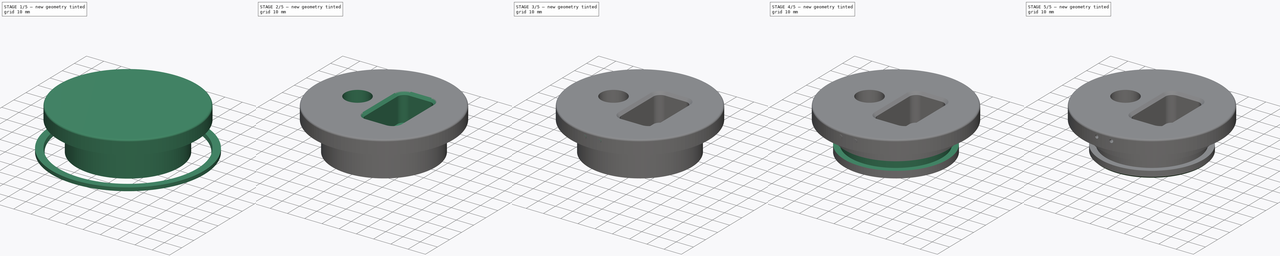
[diagram: build sequence overview — one tinted view per stage of 5, left to right]
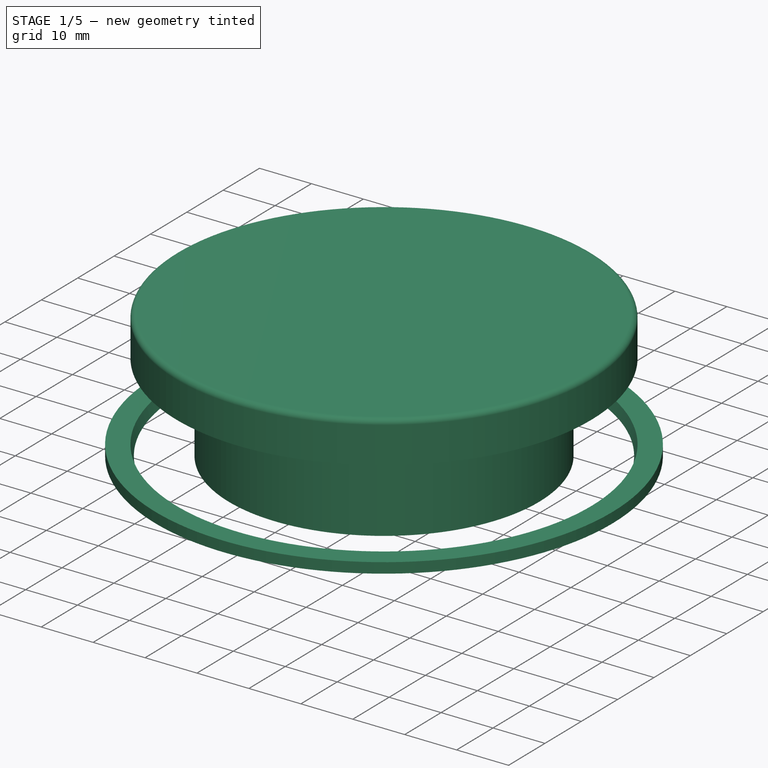
[diagram: stage 1 of 5 — iso view after this stage's code; geometry added in this stage tinted green]
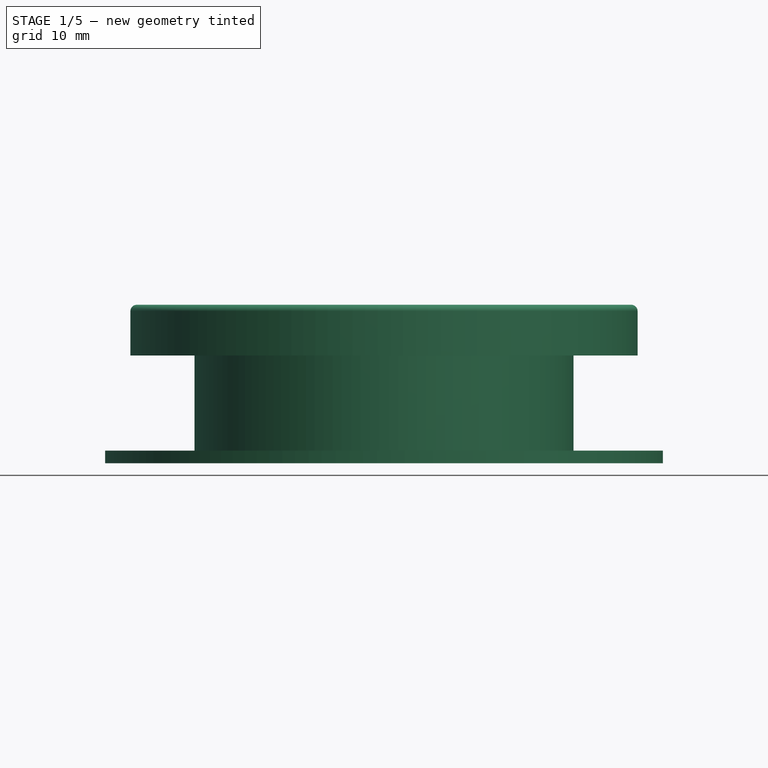
[diagram: stage 1 of 5 — front view after this stage's code; geometry added in this stage tinted green]
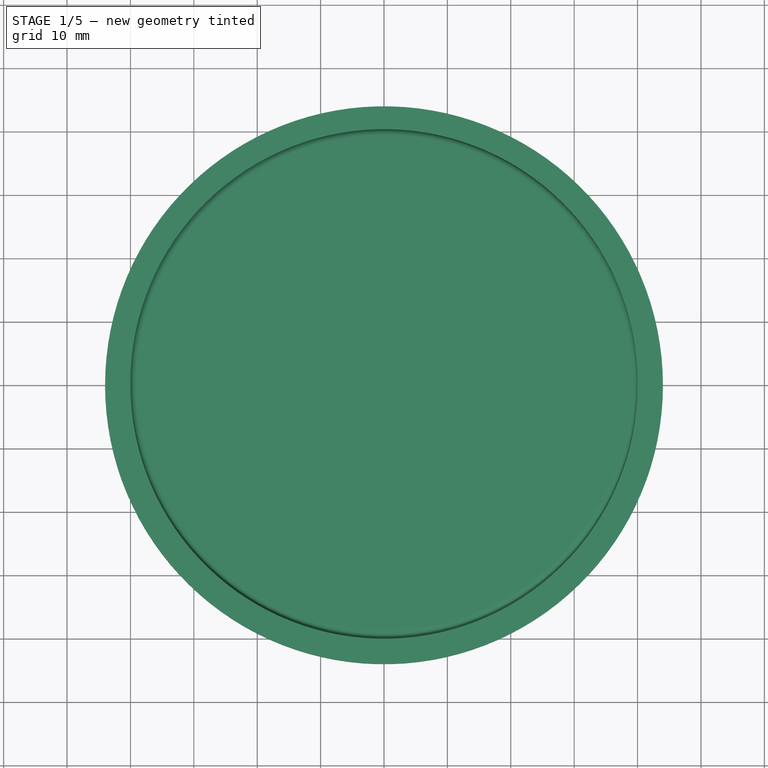
[diagram: stage 1 of 5 — top view after this stage's code; geometry added in this stage tinted green]
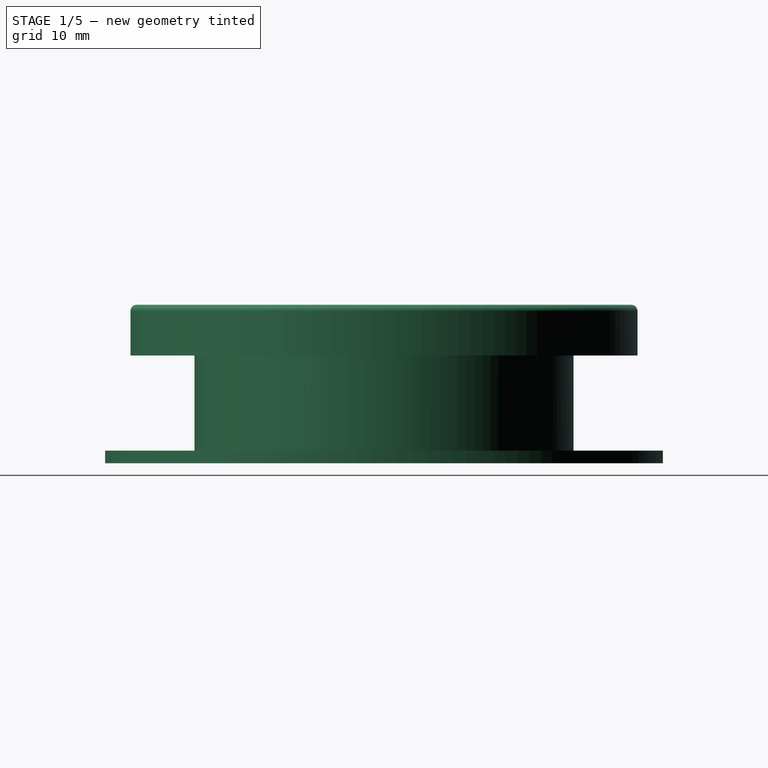
[diagram: stage 1 of 5 — right view after this stage's code; geometry added in this stage tinted green]
FCSTD DOCUMENT  (FreeCAD 0.15R4671 (Git))
Label: Deckel-POM-60er-tank
License: CC-BY 3.0
LicenseURL: http://creativecommons.org/licenses/by/3.0/
objects: Sketcher::SketchObject×7, PartDesign::Pocket×4, PartDesign::Pad×3, Part::MultiFuse×3, Part::Cut×3, Part::Cylinder×2, Part::Mirroring×2, PartDesign::Fillet×1, PartDesign::Chamfer×1, PartDesign::Draft×1, PartDesign::Mirrored×1, Part::Chamfer×1
note: 36 computed .brp shape members not serialized (recipe doc carries the construction recipe); baked Part::Feature solids carry a one-line shape summary decoded from their .brp

FEATURE [Sketcher::SketchObject] Sketch
  sketch-geometry (1):
    g0: Circle CenterX=0 CenterY=0 CenterZ=0 NormalX=0 NormalY=0 NormalZ=1 Radius=40
  constraints (2):
    c: Coincident(g0,g-1)
    c: Radius(g0) = 40
FEATURE [PartDesign::Pad] Pad  label="Oberseite"
  Length = 8
  Length2 = 100
  Sketch = -> Sketch
  Type = 0
FEATURE [PartDesign::Fillet] Fillet
  Base = -> Pad [Edge3]
  Radius = 1
FEATURE [Sketcher::SketchObject] Sketch001
  Placement = pos=(0,0,0) rot=(1,0,0;3.14159rad)
  Support = -> Fillet [Face3]
  sketch-geometry (1):
    g0: Circle CenterX=0 CenterY=0 CenterZ=0 NormalX=0 NormalY=0 NormalZ=1 Radius=29.9
  constraints (2):
    c: Coincident(g0,g-1)
    c: Radius(g0) = 29.9
FEATURE [PartDesign::Pad] Pad001  label="Innen"
  Length = 17
  Length2 = 100
  Sketch = -> Sketch001
  Type = 0
FEATURE [PartDesign::Draft] Draft
  Angle = 15
  Placement = pos=(0,0,-17) rot=(0,0,1;0rad)
  Reversed = true
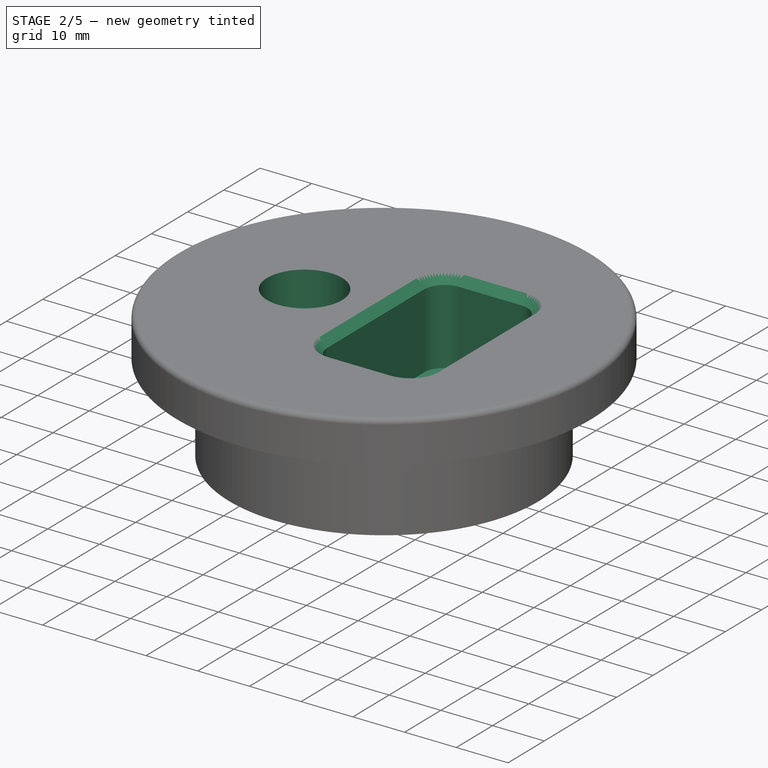
[diagram: stage 2 of 5 — iso view after this stage's code; geometry added in this stage tinted green]
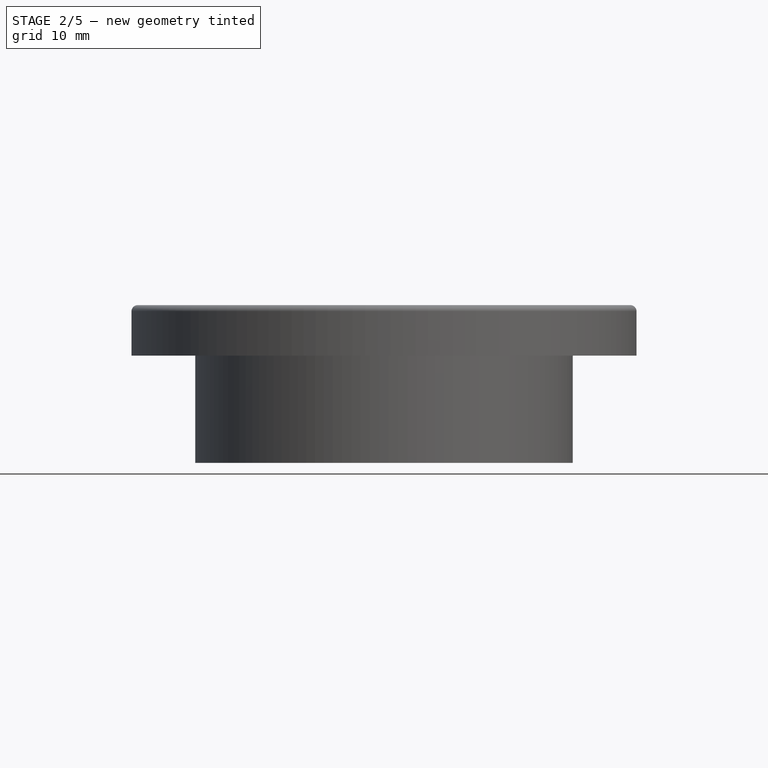
[diagram: stage 2 of 5 — front view after this stage's code; geometry added in this stage tinted green]
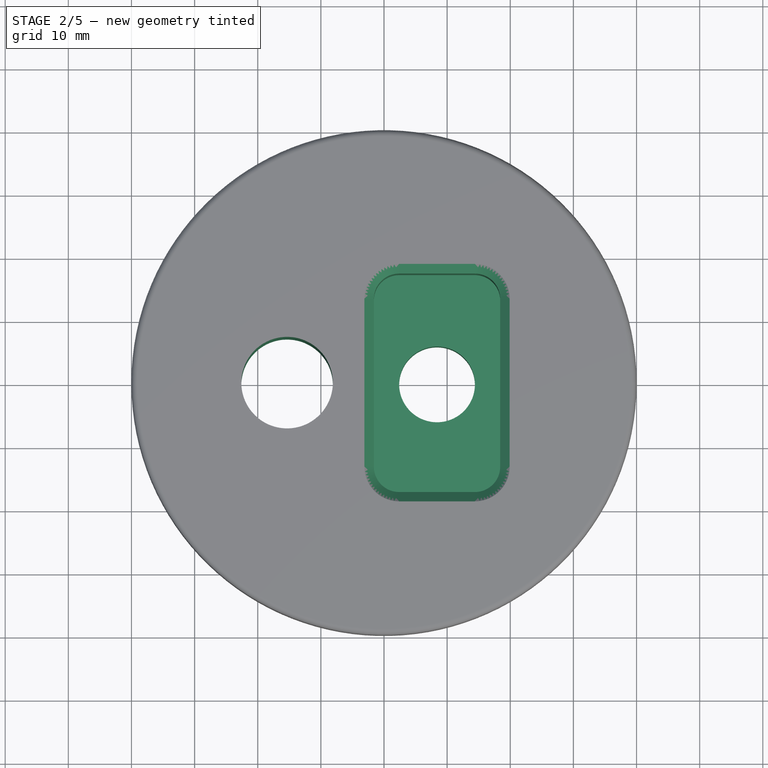
[diagram: stage 2 of 5 — top view after this stage's code; geometry added in this stage tinted green]
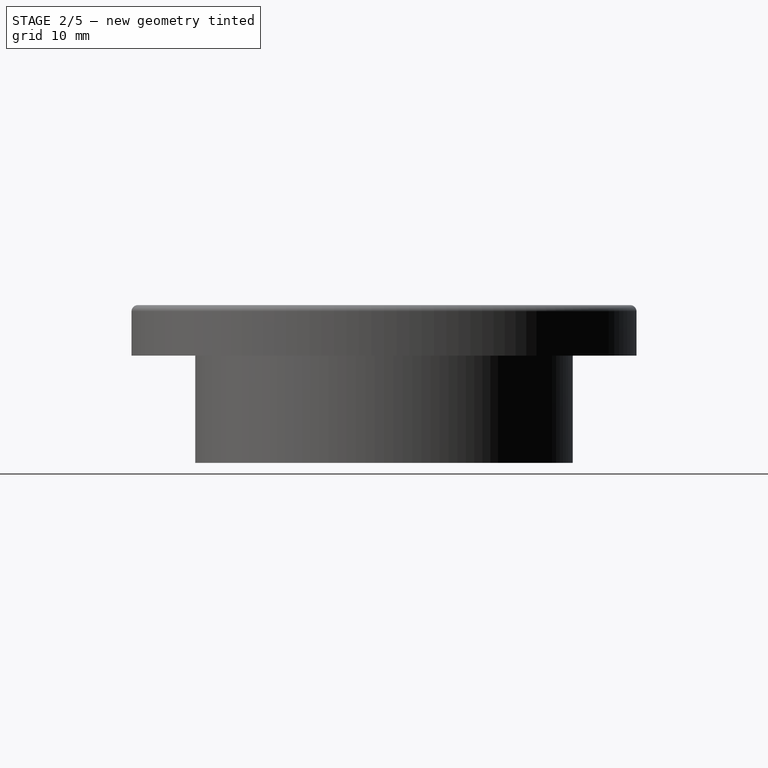
[diagram: stage 2 of 5 — right view after this stage's code; geometry added in this stage tinted green]
FEATURE [Sketcher::SketchObject] Sketch002
  Placement = pos=(0,0,8) rot=(0,0,1;0rad)
  Support = -> Pad001 [Face6]
  sketch-geometry (20):
    g0: LineSegment StartX=2.4 StartY=17.3032 StartZ=0 EndX=14.4 EndY=17.3032 EndZ=0
    g1: LineSegment StartX=18.4 StartY=13.3032 StartZ=0 EndX=18.4 EndY=-13.3032 EndZ=0
    g2: LineSegment StartX=14.4 StartY=-17.3032 StartZ=0 EndX=2.4 EndY=-17.3032 EndZ=0
    g3: LineSegment StartX=-1.6 StartY=-13.3032 StartZ=0 EndX=-1.6 EndY=13.3032 EndZ=0
    g4: Circle [constr] CenterX=0 CenterY=0 CenterZ=0 NormalX=0 NormalY=0 NormalZ=1 Radius=27.6
    g5: Circle [constr] CenterX=-16.6 CenterY=0 CenterZ=0 NormalX=0 NormalY=0 NormalZ=1 Radius=13.5
    g6: GeomPoint [constr] X=-30.1 Y=0 Z=0
    g7: GeomPoint [constr] X=-27.6 Y=0 Z=0
    g8: GeomPoint [constr] X=-3.1 Y=0 Z=0
    g9: GeomPoint [constr] X=-1.6 Y=0 Z=0
    g10: ArcOfCircle CenterX=2.4 CenterY=13.3032 CenterZ=0 NormalX=0 NormalY=0 NormalZ=1 Radius=4 StartAngle=1.5708 EndAngle=3.14159
    g11: ArcOfCircle CenterX=14.4 CenterY=13.3032 CenterZ=0 NormalX=0 NormalY=0 NormalZ=1 Radius=4 StartAngle=0 EndAngle=1.5708
    g12: ArcOfCircle CenterX=14.4 CenterY=-13.3032 CenterZ=0 NormalX=0 NormalY=0 NormalZ=1 Radius=4 StartAngle=4.71239 EndAngle=6.28319
    g13: ArcOfCircle CenterX=2.4 CenterY=-13.3032 CenterZ=0 NormalX=0 NormalY=0 NormalZ=1 Radius=4 StartAngle=3.14159 EndAngle=4.71239
    g14: LineSegment [constr] StartX=14.4 StartY=13.3032 StartZ=0 EndX=18.4 EndY=13.3032 EndZ=0
    g15: LineSegment [constr] StartX=14.4 StartY=13.3032 StartZ=0 EndX=35.6132 EndY=34.5164 EndZ=0
    g16: GeomPoint [constr] X=20.0569 Y=18.96 Z=0
    g17: Circle [constr] CenterX=-16.6 CenterY=0 CenterZ=0 NormalX=0 NormalY=0 NormalZ=1 Radius=8
    g18: GeomPoint [constr] X=17.2284 Y=16.1316 Z=0
    g19: GeomPoint [constr] X=-24.6 Y=0 Z=0
  constraints (47):
    c: Horizontal(g0)
    c: Horizontal(g2)
    c: Vertical(g1)
    c: Vertical(g3)
    c: Radius(g4) = 27.6
    c: Coincident(g4,g-1)
    c: Radius(g5) = 13.5
    c: PointOnObject(g5,g-1)
    c: PointOnObject(g6,g5)
    c: PointOnObject(g7,g4)
    c: PointOnObject(g7,g-1)
    c: PointOnObject(g6,g-1)
    c: PointOnObject(g8,g5)
    c: PointOnObject(g8,g-1)
    c: PointOnObject(g9,g-1)
    c: Distance(g8,g9) = 1.5
    c: PointOnObject(g9,g3)
    c: Tangent(g0,g10)
    c: Tangent(g3,g10)
    c: Radius(g10) = 4
    c: Tangent(g0,g11)
    c: Tangent(g1,g11)
    c: Tangent(g1,g12)
    c: Tangent(g2,g12)
    c: Tangent(g2,g13)
    c: Tangent(g3,g13)
    c: Radius(g11) = 4
    c: Radius(g12) = 4
    c: Radius(g13) = 4
    c: Horizontal(g14)
    c: Coincident(g14,g11)
    c: Coincident(g14,g1)
    c: Coincident(g15,g11)
    c: Angle(g14,g15) = 0.785398
    c: PointOnObject(g16,g4)
    c: PointOnObject(g16,g15)
    c: Coincident(g17,g5)
    c: Radius(g17) = 8
    c: PointOnObject(g18,g11)
    c: PointOnObject(g18,g15)
    c: Distance(g18,g16) = 4
    c: Symmetric(g0,g2,g-1)
    c: PointOnObject(g19,g17)
    c: PointOnObject(g19,g-1)
    c: Distance(g19,g7) = 3
    c: Distance(g15) = 30
    c: DistanceX(g2) = -12
FEATURE [PartDesign::Pocket] Pocket  label="Vertiefung Schalter"
  Length = 16
  Sketch = -> Sketch002
  Type = 0
FEATURE [PartDesign::Chamfer] Chamfer
  Base = -> Pocket [Edge9,Edge10,Edge11,Edge12,Edge13,Edge14,Edge15,Edge16]
  Size = 1.5
FEATURE [Sketcher::SketchObject] Sketch003
  ExternalGeometry = -> [Chamfer]
  Placement = pos=(0,0,-8) rot=(0,0,1;0rad)
  Support = -> Chamfer [Face20]
  sketch-geometry (3):
    g0: Circle CenterX=8.4 CenterY=0 CenterZ=0 NormalX=0 NormalY=0 NormalZ=1 Radius=6
    g1: GeomPoint [constr] X=18.4 Y=0 Z=0
    g2: GeomPoint [constr] X=-1.6 Y=0 Z=0
  constraints (7):
    c: PointOnObject(g0,g-1)
    c: PointOnObject(g1,g-3)
    c: PointOnObject(g2,g-4)
    c: PointOnObject(g2,g-1)
    c: PointOnObject(g1,g-1)
    c: Symmetric(g1,g2,g0)
    c: Radius(g0) = 6
FEATURE [PartDesign::Pocket] Pocket001  label="Bohrung Schalterdurchführung"
  Length = 9
  Sketch = -> Sketch003
  Type = 0
FEATURE [Sketcher::SketchObject] Sketch007
  Placement = pos=(0,0,8) rot=(0,0,1;0rad)
  Support = -> Pocket001 [Face1]
  sketch-geometry (7):
    g0: Circle [constr] CenterX=0 CenterY=0 CenterZ=0 NormalX=0 NormalY=0 NormalZ=1 Radius=27.6
    g1: Circle [constr] CenterX=-15.35 CenterY=0 CenterZ=0 NormalX=0 NormalY=0 NormalZ=1 Radius=13.5
    g2: GeomPoint [constr] X=-28.85 Y=0 Z=0
    g3: GeomPoint [constr] X=-27.6 Y=0 Z=0
    g4: GeomPoint [constr] X=-1.85 Y=0 Z=0
    g5: Circle CenterX=-15.35 CenterY=0 CenterZ=0 NormalX=0 NormalY=0 NormalZ=1 Radius=7.25
    g6: GeomPoint [constr] X=-22.6 Y=0 Z=0
  constraints (15):
    c: Radius(g0) = 27.6
    c: Radius(g1) = 13.5
    c: PointOnObject(g1,g-1)
    c: PointOnObject(g2,g1)
    c: PointOnObject(g3,g0)
    c: PointOnObject(g3,g-1)
    c: PointOnObject(g2,g-1)
    c: PointOnObject(g4,g1)
    c: PointOnObject(g4,g-1)
    c: Coincident(g5,g1)
    c: Radius(g5) = 7.25
    c: PointOnObject(g6,g5)
    c: PointOnObject(g6,g-1)
    c: Distance(g6,g3) = 5
    c: Coincident(g0,g-1)
FEATURE [PartDesign::Pocket] Pocket002  label="Durchführung Kabel"
  Length = 50
  Sketch = -> Sketch007
  Type = 1
FEATURE [Part::Cut] Cut
  Base = -> Pocket002
  Tool = -> Draft
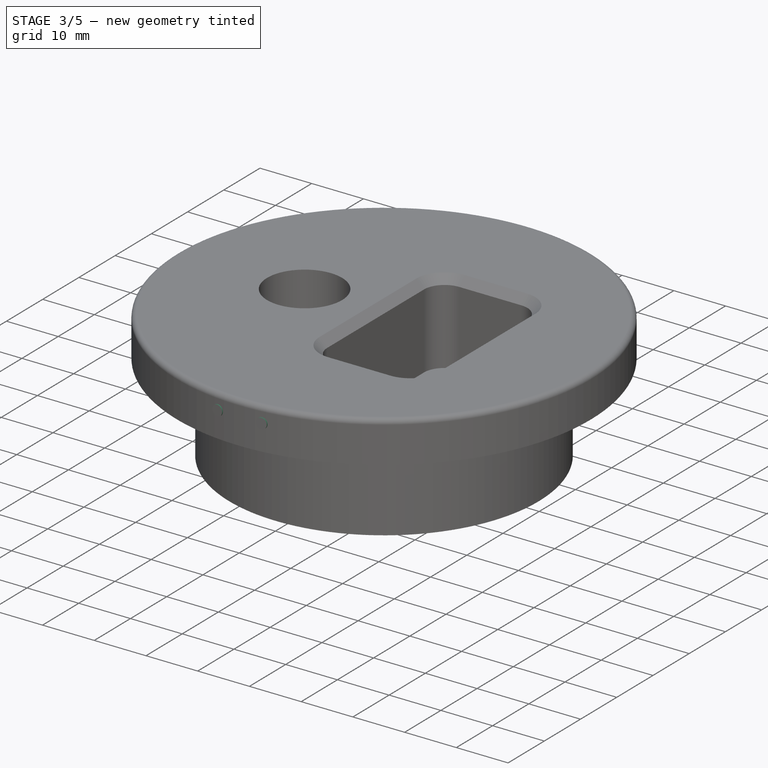
[diagram: stage 3 of 5 — iso view after this stage's code; geometry added in this stage tinted green]
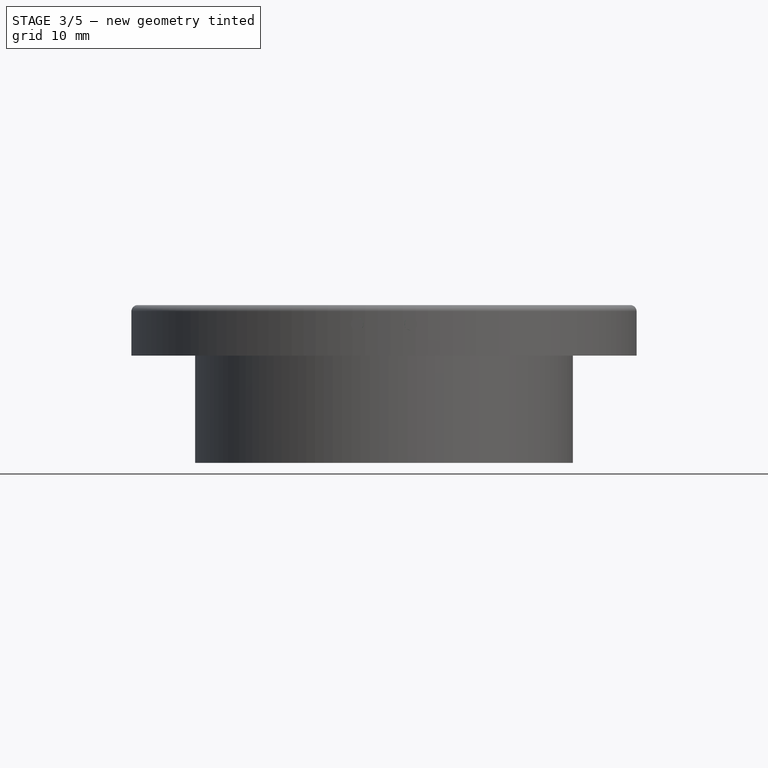
[diagram: stage 3 of 5 — front view after this stage's code; geometry added in this stage tinted green]
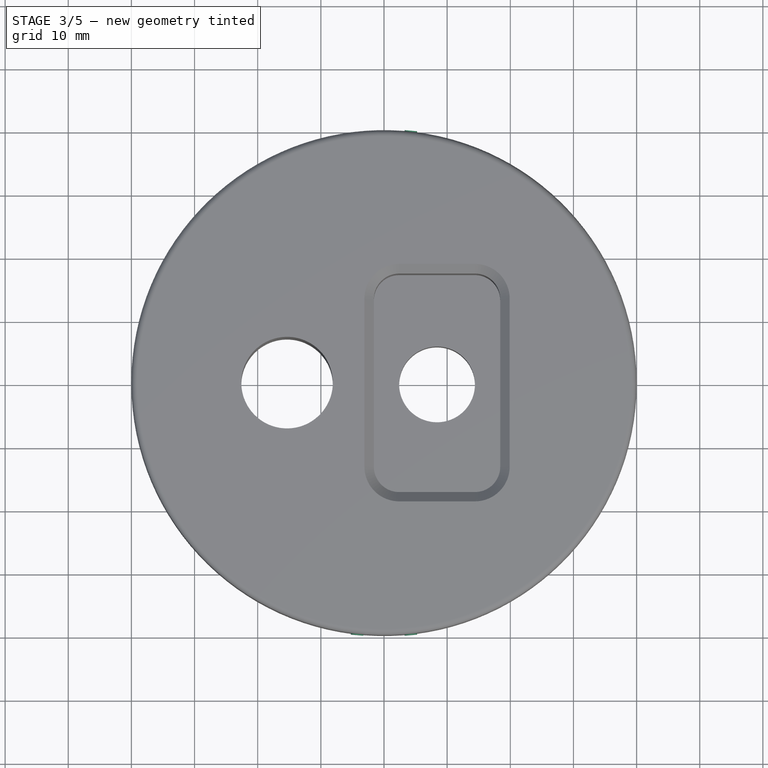
[diagram: stage 3 of 5 — top view after this stage's code; geometry added in this stage tinted green]
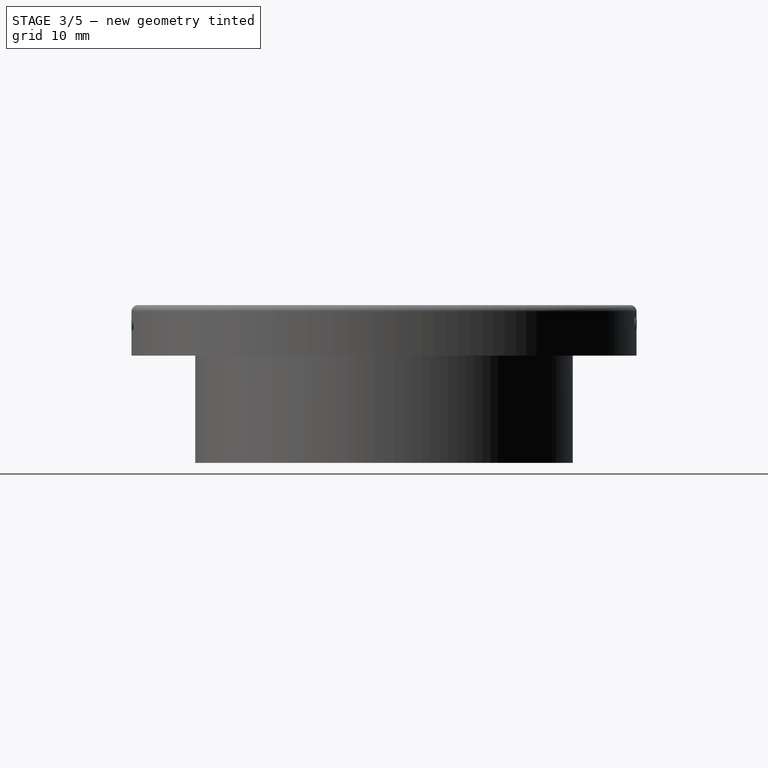
[diagram: stage 3 of 5 — right view after this stage's code; geometry added in this stage tinted green]
FEATURE [Part::Cylinder] Cylinder001
  Angle = 360
  Height = 16
  Placement = pos=(-2.865,-24,5) rot=(0.998099,-0.043578,-0.043578;1.5727rad)
  Radius = 1
FEATURE [Part::Cylinder] Cylinder
  Angle = 360
  Height = 16
  Placement = pos=(2.865,-24,5) rot=(0.998099,0.043578,0.043578;1.5727rad)
  Radius = 1
FEATURE [Part::Mirroring] Part__Mirroring001  label="Cylinder (Mirror #2)"
  Base = (0,0,0)
  Normal = (0,1,0)
  Source = -> Cylinder
FEATURE [Part::MultiFuse] Fusion001
  Shapes = -> [Cylinder,Cylinder001]
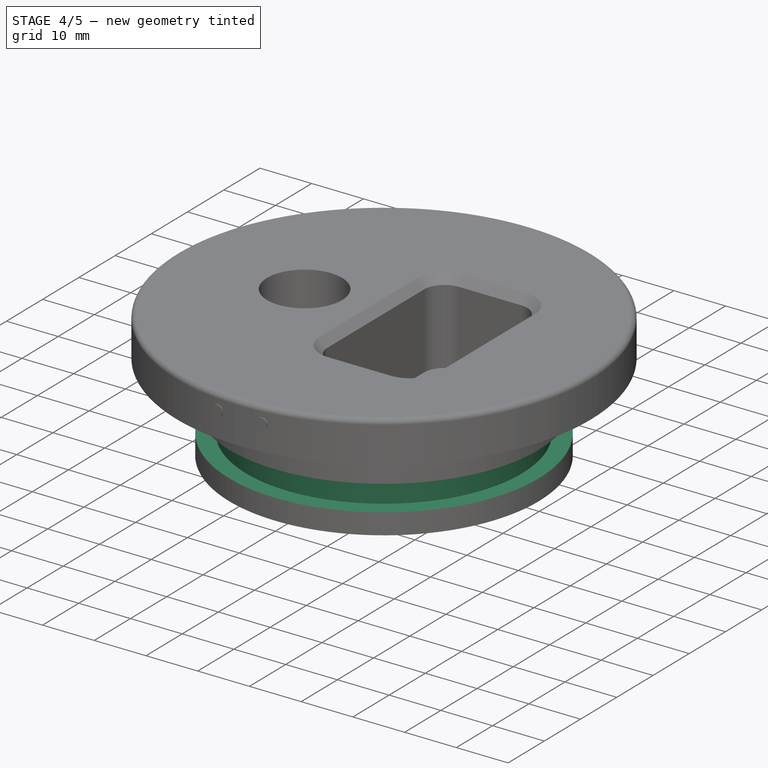
[diagram: stage 4 of 5 — iso view after this stage's code; geometry added in this stage tinted green]
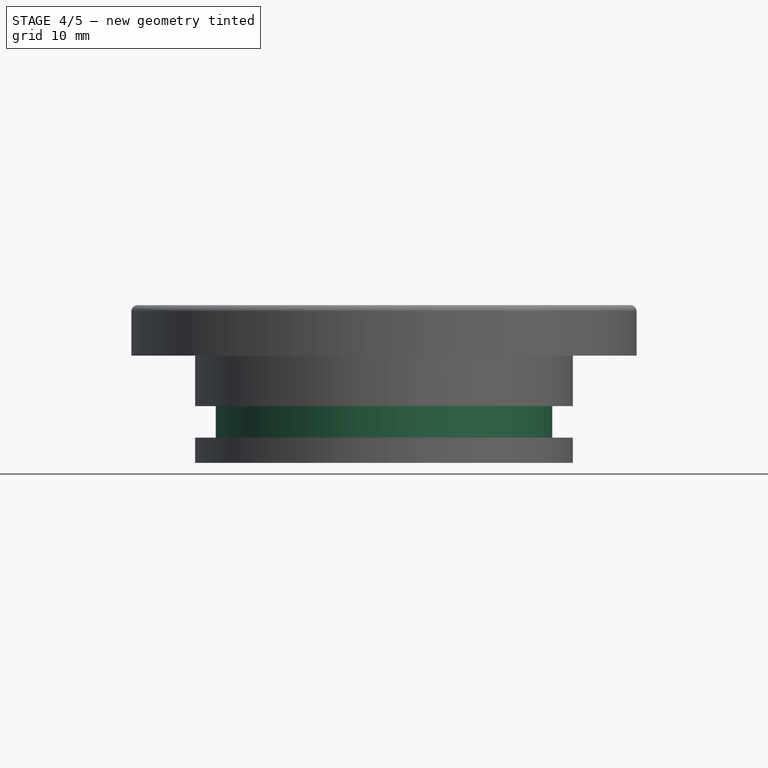
[diagram: stage 4 of 5 — front view after this stage's code; geometry added in this stage tinted green]
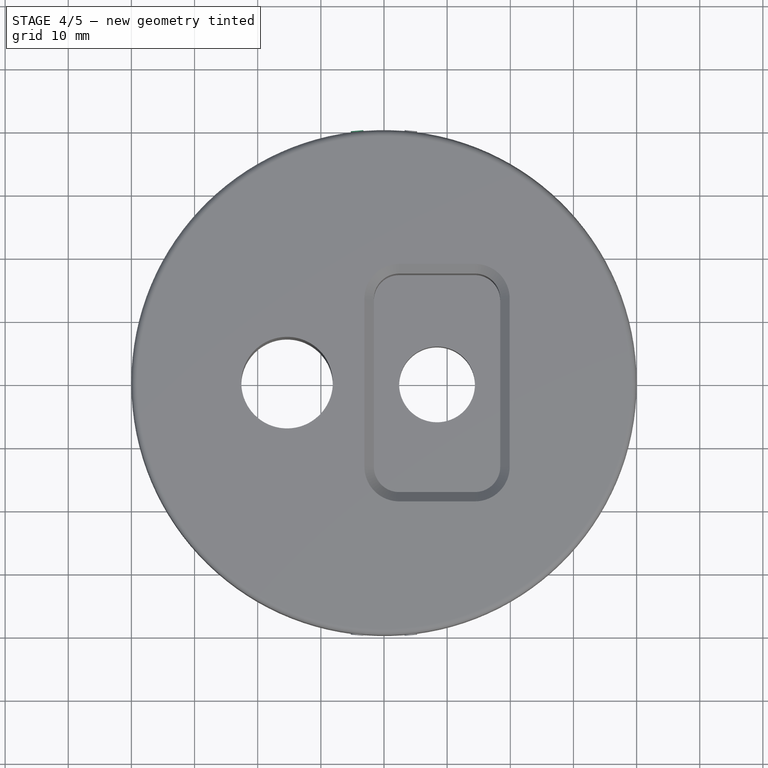
[diagram: stage 4 of 5 — top view after this stage's code; geometry added in this stage tinted green]
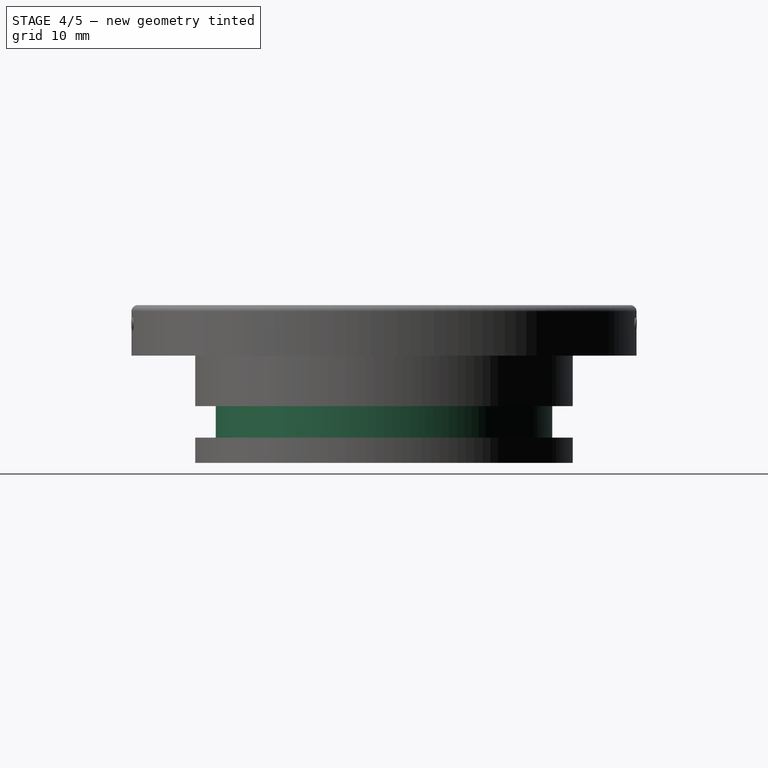
[diagram: stage 4 of 5 — right view after this stage's code; geometry added in this stage tinted green]
FEATURE [Sketcher::SketchObject] Sketch009
  Placement = pos=(0,0,-13) rot=(0,0,1;0rad)
  sketch-geometry (2):
    g0: Circle CenterX=0 CenterY=0 CenterZ=0 NormalX=0 NormalY=0 NormalZ=1 Radius=26.65
    g1: Circle CenterX=0 CenterY=0 CenterZ=0 NormalX=0 NormalY=0 NormalZ=1 Radius=30
  constraints (4):
    c: Coincident(g1,g0)
    c: Radius(g0) = 26.65
    c: Radius(g1) = 30
    c: Coincident(g0,g-1)
FEATURE [PartDesign::Pad] Pad003  label="Nut ORing"
  Length = 5
  Length2 = 12
  Placement = pos=(0,0,-13) rot=(0,0,1;0rad)
  Sketch = -> Sketch009
  Type = 0
FEATURE [Part::Mirroring] Part__Mirroring  label="Cylinder001 (Mirror #1)"
  Base = (0,0,0)
  Normal = (0,1,0)
  Source = -> Cylinder001
FEATURE [Part::MultiFuse] Fusion
  Shapes = -> [Part__Mirroring,Part__Mirroring001]
FEATURE [Part::MultiFuse] Fusion002  label="Nielson Bohrungen"
  Shapes = -> [Fusion001,Fusion]
FEATURE [Part::Cut] Cut001
  Base = -> Cut
  Tool = -> Pad003
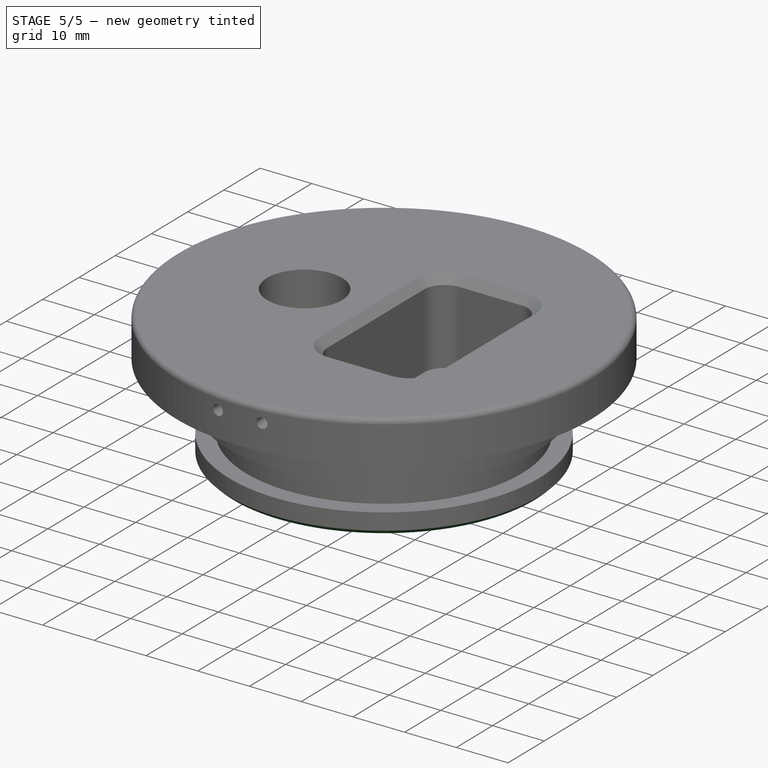
[diagram: stage 5 of 5 — iso view after this stage's code; geometry added in this stage tinted green]
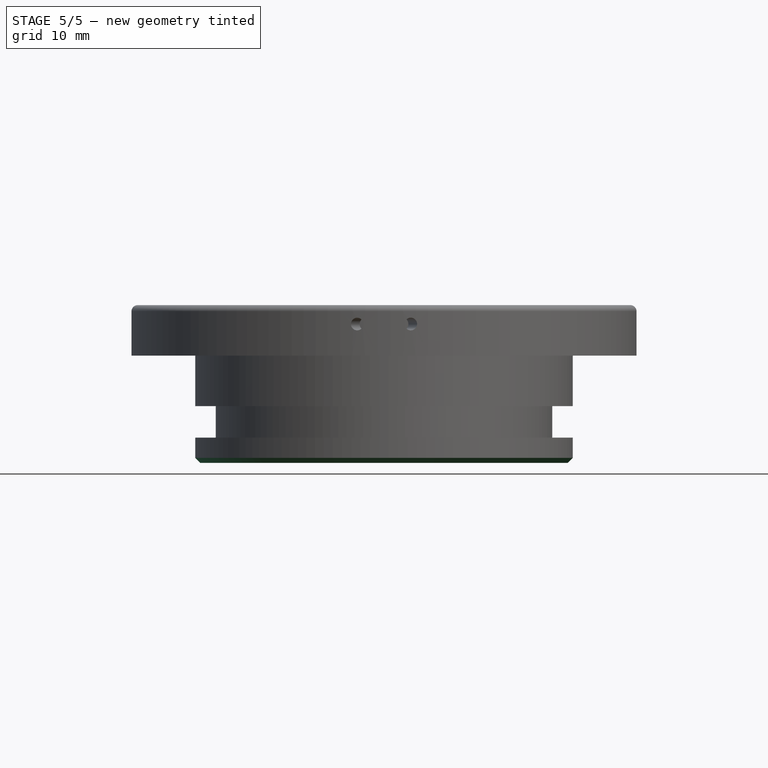
[diagram: stage 5 of 5 — front view after this stage's code; geometry added in this stage tinted green]
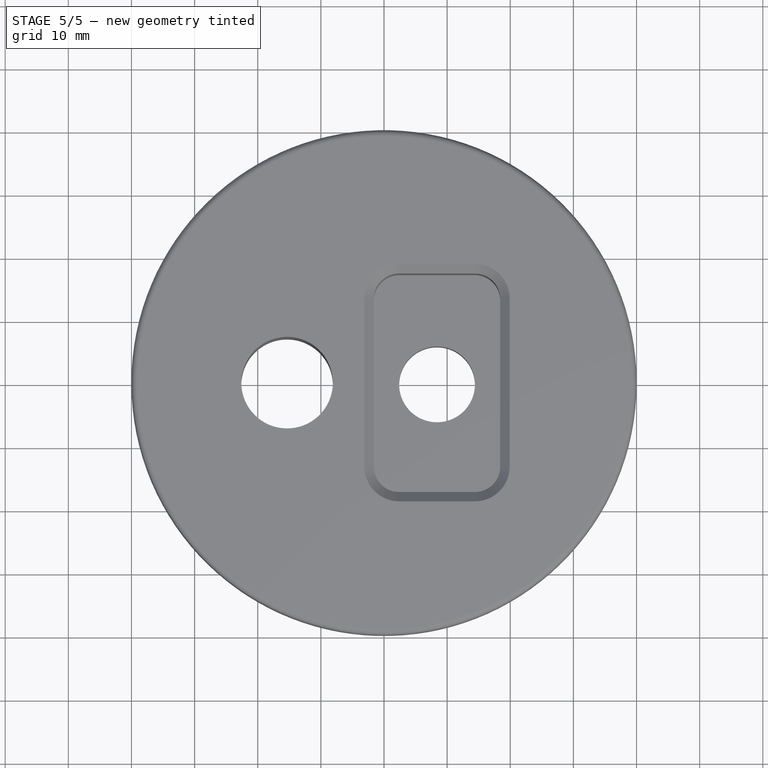
[diagram: stage 5 of 5 — top view after this stage's code; geometry added in this stage tinted green]
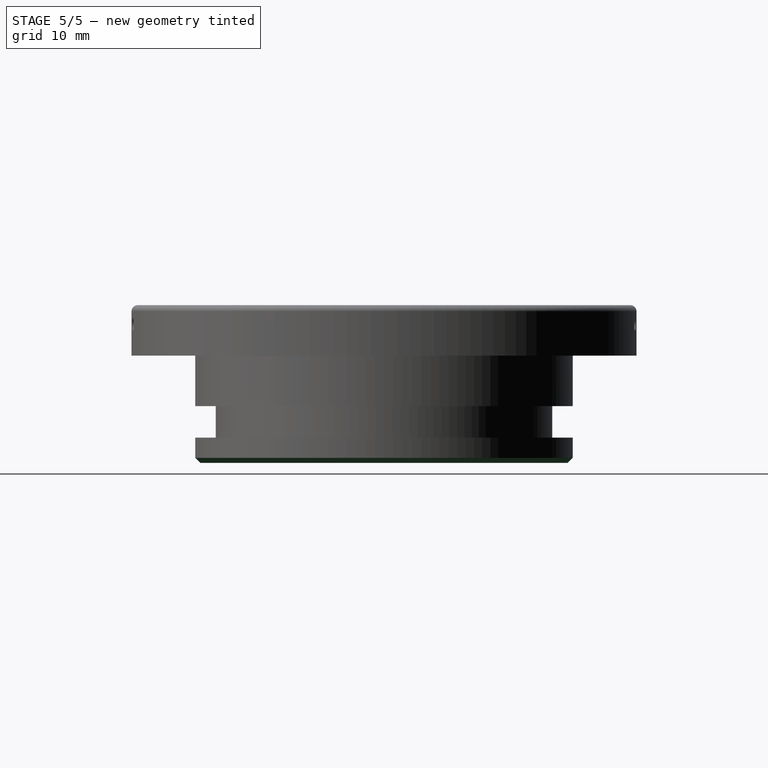
[diagram: stage 5 of 5 — right view after this stage's code; geometry added in this stage tinted green]
FEATURE [Part::Cut] Cut002
  Base = -> Cut001
  Tool = -> Fusion002
FEATURE [Sketcher::SketchObject] Sketch010
  Placement = pos=(0,0,-17) rot=(1,0,0;3.14159rad)
  Support = -> Cut002 [Face13]
  sketch-geometry (2):
    g0: Circle CenterX=-8 CenterY=20 CenterZ=0 NormalX=0 NormalY=0 NormalZ=1 Radius=2.1
    g1: LineSegment [constr] StartX=0 StartY=20 StartZ=0 EndX=-8 EndY=20 EndZ=0
  constraints (6):
    c: Perpendicular(g1,g-2)
    c: PointOnObject(g1,g-2)
    c: Coincident(g1,g0)
    c: Radius(g0) = 2.1
    c: Distance(g-1,g1) = 20
    c: Distance(g0,g1) = 8
FEATURE [PartDesign::Pocket] Pocket003
  Length = 15
  Sketch = -> Sketch010
  Type = 0
FEATURE [PartDesign::Mirrored] Mirrored
  MirrorPlane = -> Sketch010 [H_Axis]
  Originals = -> [Pocket003]
FEATURE [Part::Chamfer] Chamfer001
  Base = -> Mirrored
  Edges = 1 edges r=0.8: [Edge41]
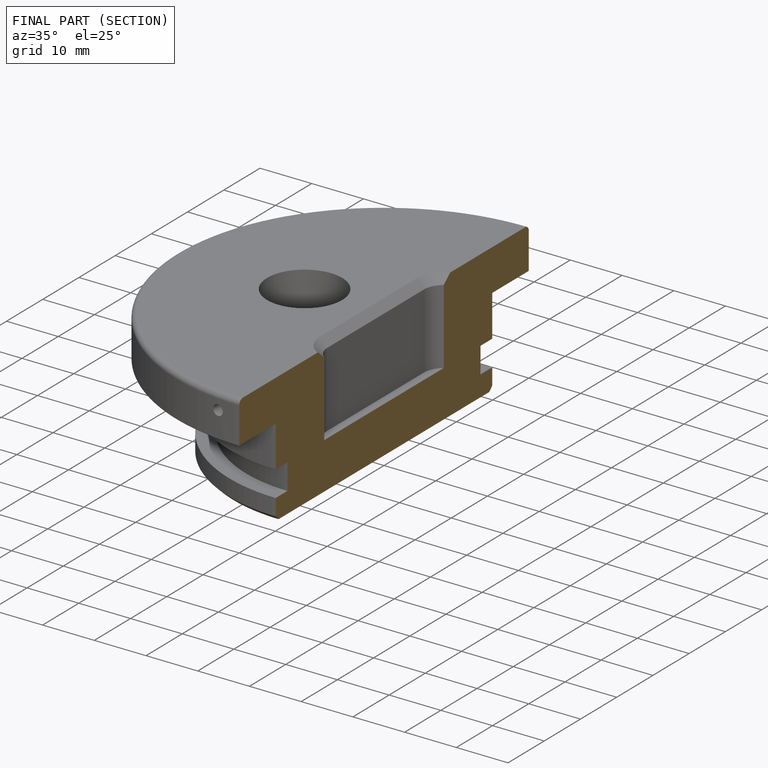
[diagram: finished part — half-section view (interior)]
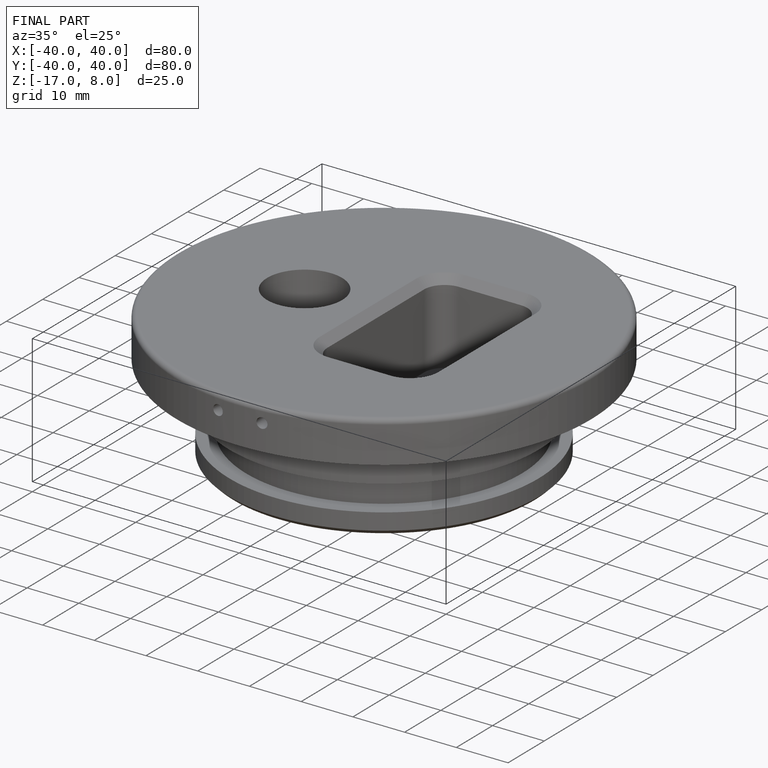
[diagram: finished part — iso view with bounding-box wireframe]
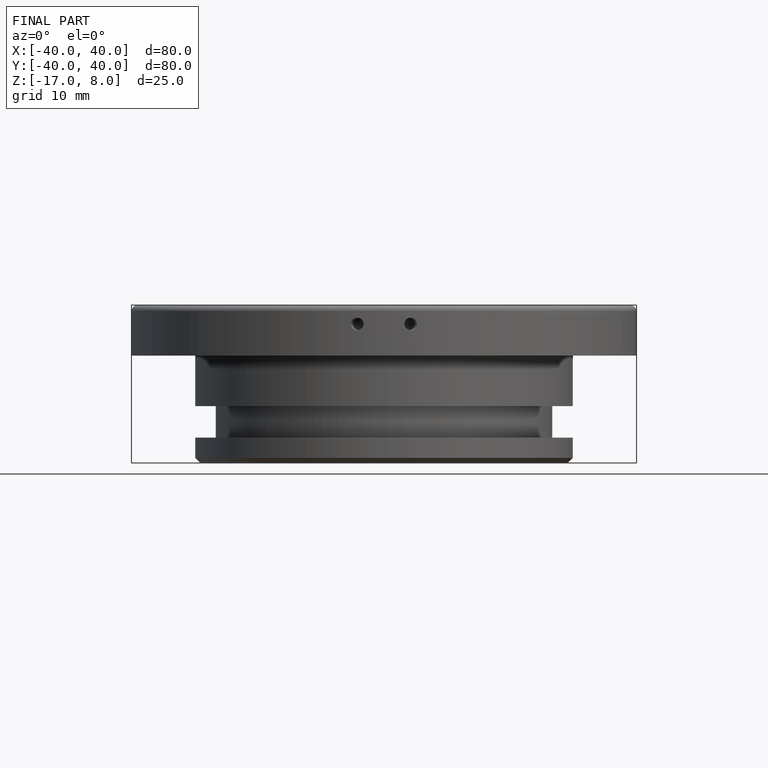
[diagram: finished part — front view with bounding-box wireframe]
